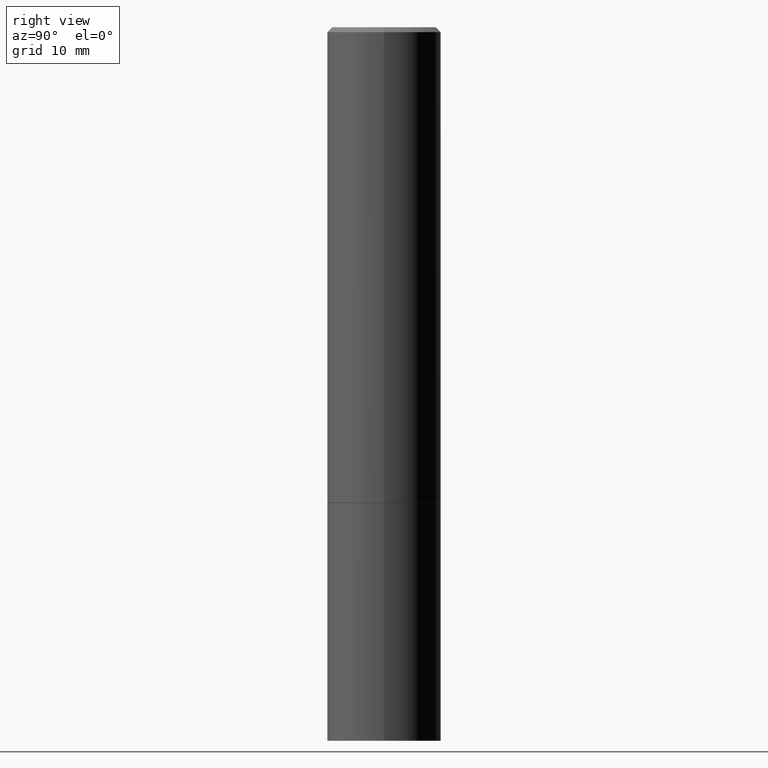
[diagram: clean part render]
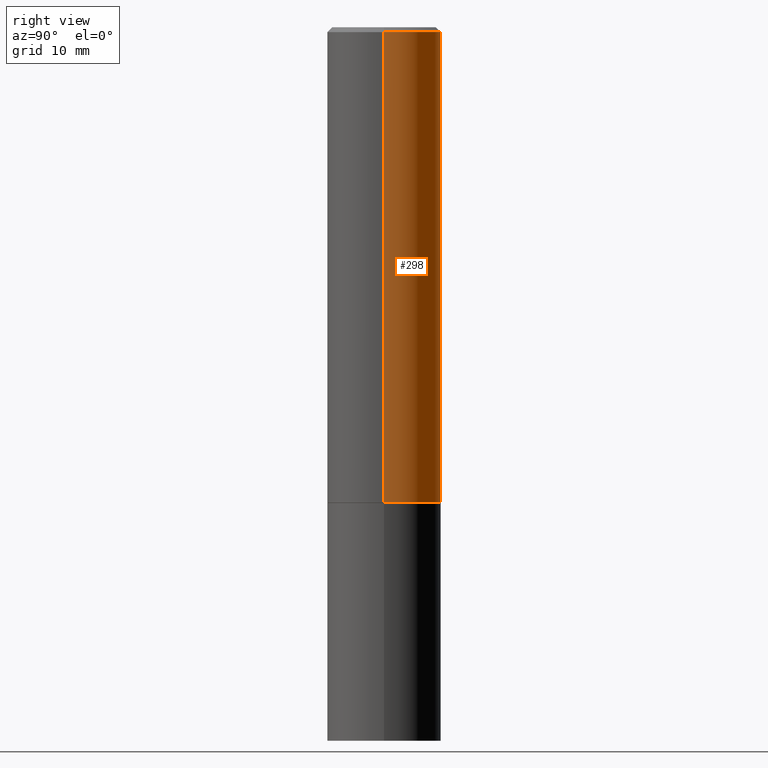
[diagram: same view with one face highlighted and labeled with its STEP entity id]
A machine part, right view. The second image highlights one B-rep face of the part: STEP entity #298.
In plain terms, the highlighted cylindrical surface (partial cylindrical patch) has radius 5.9995 mm, axis along (-0, 0, 1).
Its self-contained STEP definition (entity closure, byte-faithful):
#1 = CARTESIAN_POINT ( 'NONE',  ( -0.2361999999999997157, 1.579546157692631255E-15, -0.02000000000000005593 ) ) ;
#10 = AXIS2_PLACEMENT_3D ( 'NONE', #69, #178, #286 ) ;
#15 = EDGE_LOOP ( 'NONE', ( #118, #61, #172, #335 ) ) ;
#36 = CARTESIAN_POINT ( 'NONE',  ( -0.2362000000000000210, -1.791357638610016844E-15, -1.967499999999999805 ) ) ;
#39 = CARTESIAN_POINT ( 'NONE',  ( 0.2361999999999999933, -8.518865318643383648E-15, -1.967499999999999805 ) ) ;
#49 = CIRCLE ( 'NONE', #240, 0.2361999999999997157 ) ;
#61 = ORIENTED_EDGE ( 'NONE', *, *, #188, .T. ) ;
#68 = EDGE_CURVE ( 'NONE', #257, #159, #96, .T. ) ;
#69 = CARTESIAN_POINT ( 'NONE',  ( 4.811459876169255671E-29, -6.869489534173887122E-15, -1.967499999999999805 ) ) ;
#96 = LINE ( 'NONE', #215, #189 ) ;
#118 = ORIENTED_EDGE ( 'NONE', *, *, #348, .T. ) ;
#133 = CARTESIAN_POINT ( 'NONE',  ( 0.2361999999999997157, -1.690279253850496996E-15, -0.02000000000000005593 ) ) ;
#136 = CARTESIAN_POINT ( 'NONE',  ( 4.890937612370287172E-31, -6.982962677686310098E-17, -0.02000000000000005593 ) ) ;
#143 = FACE_OUTER_BOUND ( 'NONE', #15, .T. ) ;
#145 = EDGE_CURVE ( 'NONE', #159, #243, #49, .T. ) ;
#159 = VERTEX_POINT ( 'NONE', #133 ) ;
#164 = DIRECTION ( 'NONE',  ( -2.445468806185136597E-29, 3.491481338843145583E-15, 1.000000000000000000 ) ) ;
#171 = LINE ( 'NONE', #256, #190 ) ;
#172 = ORIENTED_EDGE ( 'NONE', *, *, #145, .F. ) ;
#173 = AXIS2_PLACEMENT_3D ( 'NONE', #313, #227, #209 ) ;
#178 = DIRECTION ( 'NONE',  ( -2.445468806185136597E-29, 3.491481338843145583E-15, 1.000000000000000000 ) ) ;
#188 = EDGE_CURVE ( 'NONE', #326, #243, #171, .T. ) ;
#189 = VECTOR ( 'NONE', #300, 39.37007874015748143 ) ;
#190 = VECTOR ( 'NONE', #282, 39.37007874015748143 ) ;
#209 = DIRECTION ( 'NONE',  ( 1.000000000000000000, -6.982962677686266711E-15, 4.876176775795935793E-29 ) ) ;
#215 = CARTESIAN_POINT ( 'NONE',  ( 0.2361999999999998545, -1.649375784469495145E-15, 1.151752954442999387E-29 ) ) ;
#227 = DIRECTION ( 'NONE',  ( -2.445468806185136597E-29, 3.491481338843145583E-15, 1.000000000000000000 ) ) ;
#240 = AXIS2_PLACEMENT_3D ( 'NONE', #136, #164, #355 ) ;
#243 = VERTEX_POINT ( 'NONE', #1 ) ;
#256 = CARTESIAN_POINT ( 'NONE',  ( -0.2361999999999998545, 1.678301941865355605E-15, -1.161852468318208056E-29 ) ) ;
#257 = VERTEX_POINT ( 'NONE', #39 ) ;
#260 = CIRCLE ( 'NONE', #10, 0.2361999999999999933 ) ;
#278 = CYLINDRICAL_SURFACE ( 'NONE', #173, 0.2361999999999998545 ) ;
#282 = DIRECTION ( 'NONE',  ( -2.445468806185136877E-29, 3.491481338843145188E-15, 1.000000000000000000 ) ) ;
#286 = DIRECTION ( 'NONE',  ( 1.000000000000000000, -6.982962677686269077E-15, 0.000000000000000000 ) ) ;
#298 = ADVANCED_FACE ( 'NONE', ( #143 ), #278, .T. ) ;
#300 = DIRECTION ( 'NONE',  ( -2.445468806185136877E-29, 3.491481338843145188E-15, 1.000000000000000000 ) ) ;
#313 = CARTESIAN_POINT ( 'NONE',  ( 0.000000000000000000, 0.000000000000000000, 0.000000000000000000 ) ) ;
#326 = VERTEX_POINT ( 'NONE', #36 ) ;
#335 = ORIENTED_EDGE ( 'NONE', *, *, #68, .F. ) ;
#348 = EDGE_CURVE ( 'NONE', #257, #326, #260, .T. ) ;
#355 = DIRECTION ( 'NONE',  ( 1.000000000000000000, -6.982962677686266711E-15, 0.000000000000000000 ) ) ;